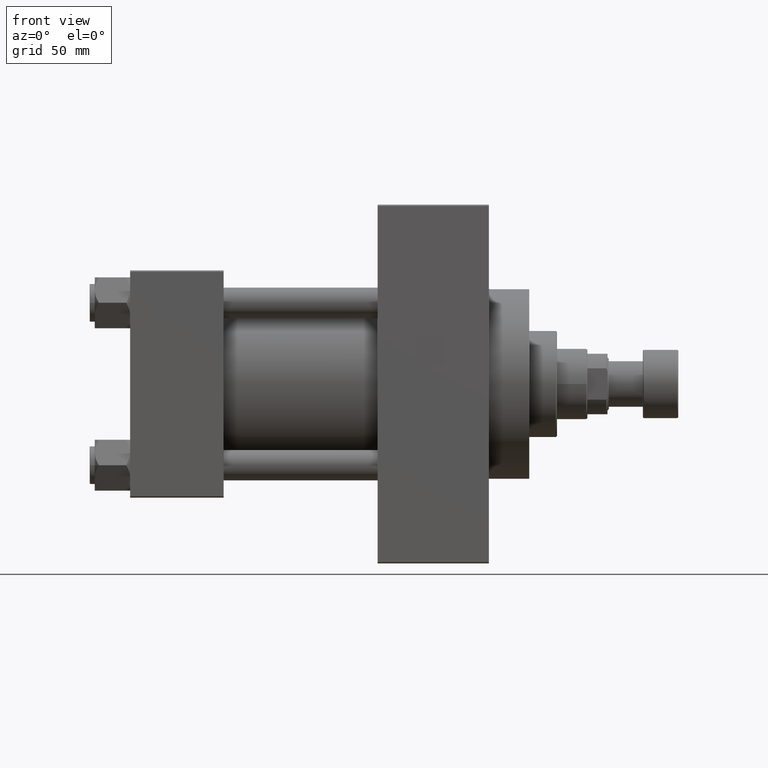
[diagram: clean part render]
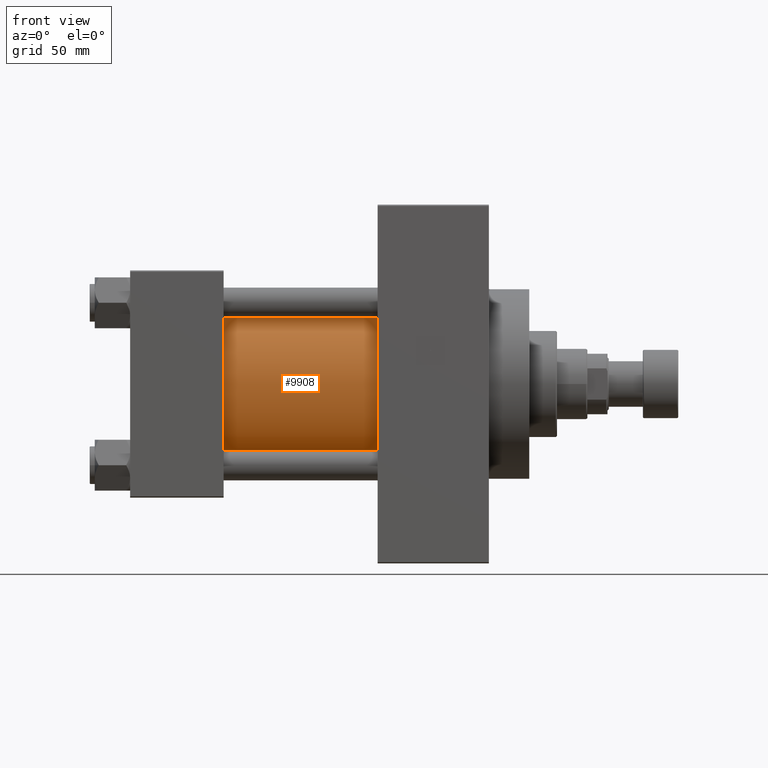
[diagram: same view with one face highlighted and labeled with its STEP entity id]
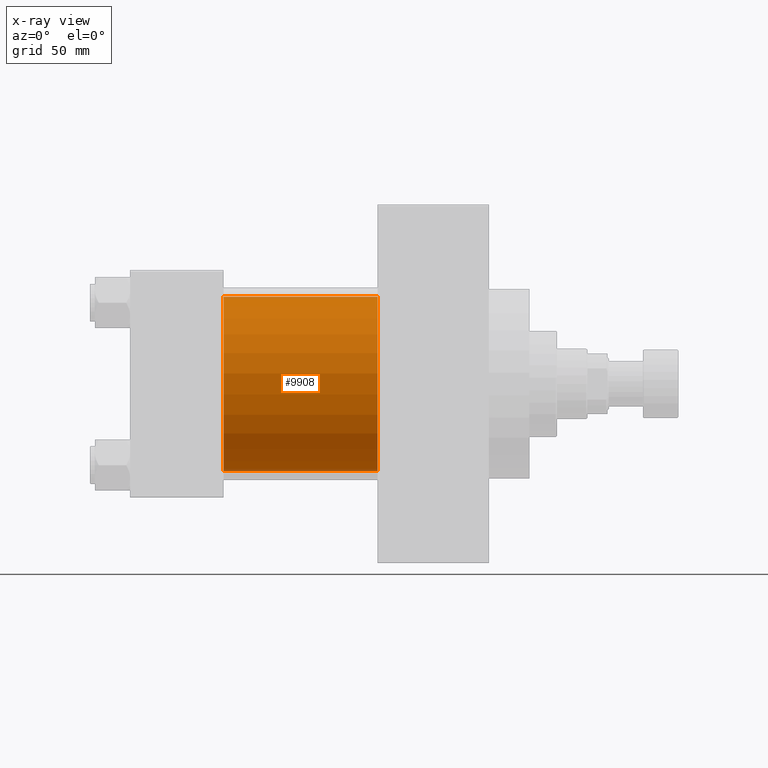
[diagram: x-ray of the same camera — body ghosted, the highlighted face saturated]
A machine part, front view. The second image highlights one B-rep face of the part: STEP entity #9908.
The next image is the same camera in x-ray: the body ghosted, the highlighted face saturated — about 2% of this face is hidden behind the body in this view.
In plain terms, the highlighted cylindrical surface (partial cylindrical patch) has radius 34.5 mm, axis along (-1, -0, -0).
Its self-contained STEP definition (entity closure, byte-faithful):
#2410 = DIRECTION ( 'NONE',  ( 0.000000000000000000, 0.000000000000000000, 1.000000000000000000 ) ) ;
#2452 = EDGE_CURVE ( 'NONE', #4529, #5494, #14528, .T. ) ;
#3501 = DIRECTION ( 'NONE',  ( -1.000000000000000000, -0.000000000000000000, -0.000000000000000000 ) ) ;
#4251 = CARTESIAN_POINT ( 'NONE',  ( 98.00000000000000000, -2.602085213965210642E-15, 34.50000000000000000 ) ) ;
#4529 = VERTEX_POINT ( 'NONE', #30896 ) ;
#5494 = VERTEX_POINT ( 'NONE', #15016 ) ;
#5691 = FACE_OUTER_BOUND ( 'NONE', #36264, .T. ) ;
#5836 = CIRCLE ( 'NONE', #29162, 34.50000000000000000 ) ;
#6471 = DIRECTION ( 'NONE',  ( 0.000000000000000000, 0.000000000000000000, 1.000000000000000000 ) ) ;
#7821 = EDGE_CURVE ( 'NONE', #34060, #8370, #22403, .T. ) ;
#7866 = EDGE_CURVE ( 'NONE', #34060, #4529, #24382, .T. ) ;
#8370 = VERTEX_POINT ( 'NONE', #25062 ) ;
#9118 = VECTOR ( 'NONE', #3501, 1000.000000000000000 ) ;
#9345 = ORIENTED_EDGE ( 'NONE', *, *, #7866, .F. ) ;
#9908 = ADVANCED_FACE ( 'NONE', ( #5691 ), #13250, .T. ) ;
#13250 = CYLINDRICAL_SURFACE ( 'NONE', #17242, 34.50000000000000000 ) ;
#13536 = CARTESIAN_POINT ( 'NONE',  ( 37.00000000000000000, -2.602085213965210642E-15, 0.000000000000000000 ) ) ;
#14528 = LINE ( 'NONE', #37173, #30644 ) ;
#15016 = CARTESIAN_POINT ( 'NONE',  ( 37.00000000000000000, 1.622946243093157097E-15, -34.50000000000000000 ) ) ;
#17242 = AXIS2_PLACEMENT_3D ( 'NONE', #28853, #36901, #2410 ) ;
#18593 = CARTESIAN_POINT ( 'NONE',  ( 98.00000000000000000, -2.602085213965210642E-15, 34.50000000000000000 ) ) ;
#22403 = LINE ( 'NONE', #4251, #9118 ) ;
#23588 = ORIENTED_EDGE ( 'NONE', *, *, #7821, .T. ) ;
#24382 = CIRCLE ( 'NONE', #45256, 34.50000000000000000 ) ;
#25062 = CARTESIAN_POINT ( 'NONE',  ( 37.00000000000000000, -2.602085213965210642E-15, 34.50000000000000000 ) ) ;
#27171 = CARTESIAN_POINT ( 'NONE',  ( 98.00000000000000000, -2.602085213965210642E-15, 0.000000000000000000 ) ) ;
#28184 = EDGE_CURVE ( 'NONE', #8370, #5494, #5836, .T. ) ;
#28853 = CARTESIAN_POINT ( 'NONE',  ( 98.00000000000000000, -2.602085213965210642E-15, 0.000000000000000000 ) ) ;
#29162 = AXIS2_PLACEMENT_3D ( 'NONE', #13536, #36927, #6471 ) ;
#30644 = VECTOR ( 'NONE', #32909, 1000.000000000000000 ) ;
#30896 = CARTESIAN_POINT ( 'NONE',  ( 98.00000000000000000, 1.622946243093157097E-15, -34.50000000000000000 ) ) ;
#32739 = ORIENTED_EDGE ( 'NONE', *, *, #2452, .F. ) ;
#32909 = DIRECTION ( 'NONE',  ( -1.000000000000000000, -0.000000000000000000, -0.000000000000000000 ) ) ;
#34060 = VERTEX_POINT ( 'NONE', #18593 ) ;
#36264 = EDGE_LOOP ( 'NONE', ( #32739, #9345, #23588, #47264 ) ) ;
#36901 = DIRECTION ( 'NONE',  ( -1.000000000000000000, -0.000000000000000000, -0.000000000000000000 ) ) ;
#36927 = DIRECTION ( 'NONE',  ( 1.000000000000000000, -0.000000000000000000, 0.000000000000000000 ) ) ;
#37173 = CARTESIAN_POINT ( 'NONE',  ( 98.00000000000000000, 1.622946243093157097E-15, -34.50000000000000000 ) ) ;
#45256 = AXIS2_PLACEMENT_3D ( 'NONE', #27171, #49791, #49550 ) ;
#47264 = ORIENTED_EDGE ( 'NONE', *, *, #28184, .T. ) ;
#49550 = DIRECTION ( 'NONE',  ( 0.000000000000000000, 0.000000000000000000, -1.000000000000000000 ) ) ;
#49791 = DIRECTION ( 'NONE',  ( 1.000000000000000000, 0.000000000000000000, 0.000000000000000000 ) ) ;